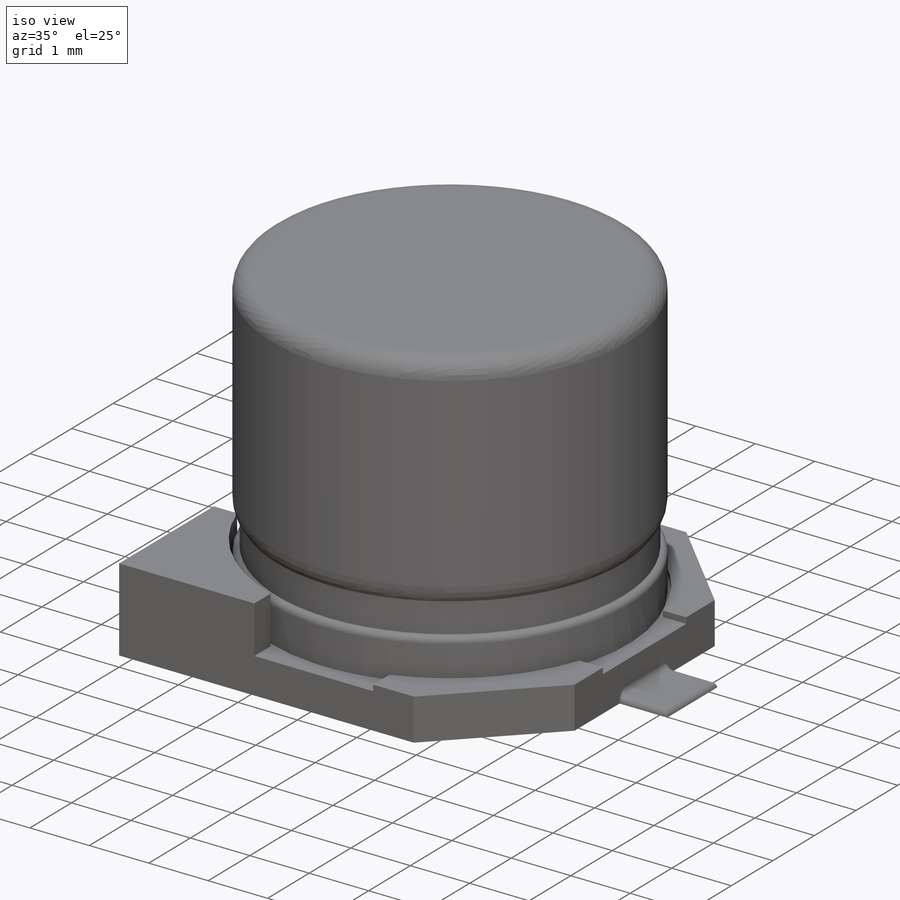
[diagram: iso view]
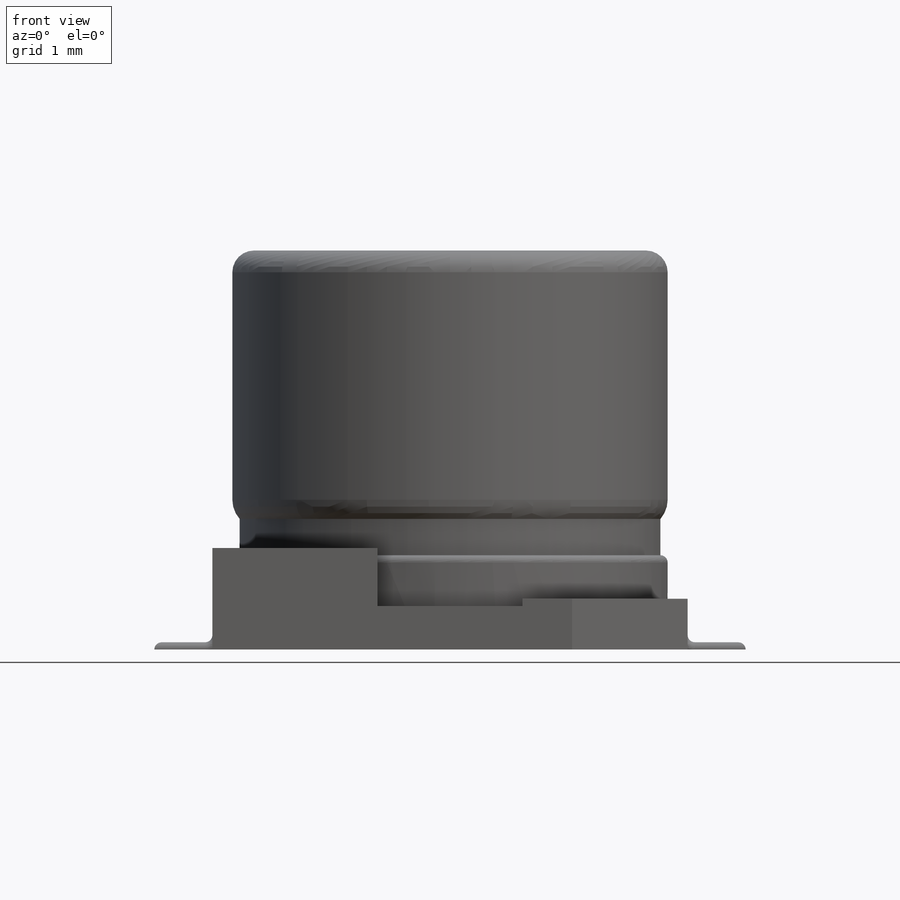
[diagram: front view]
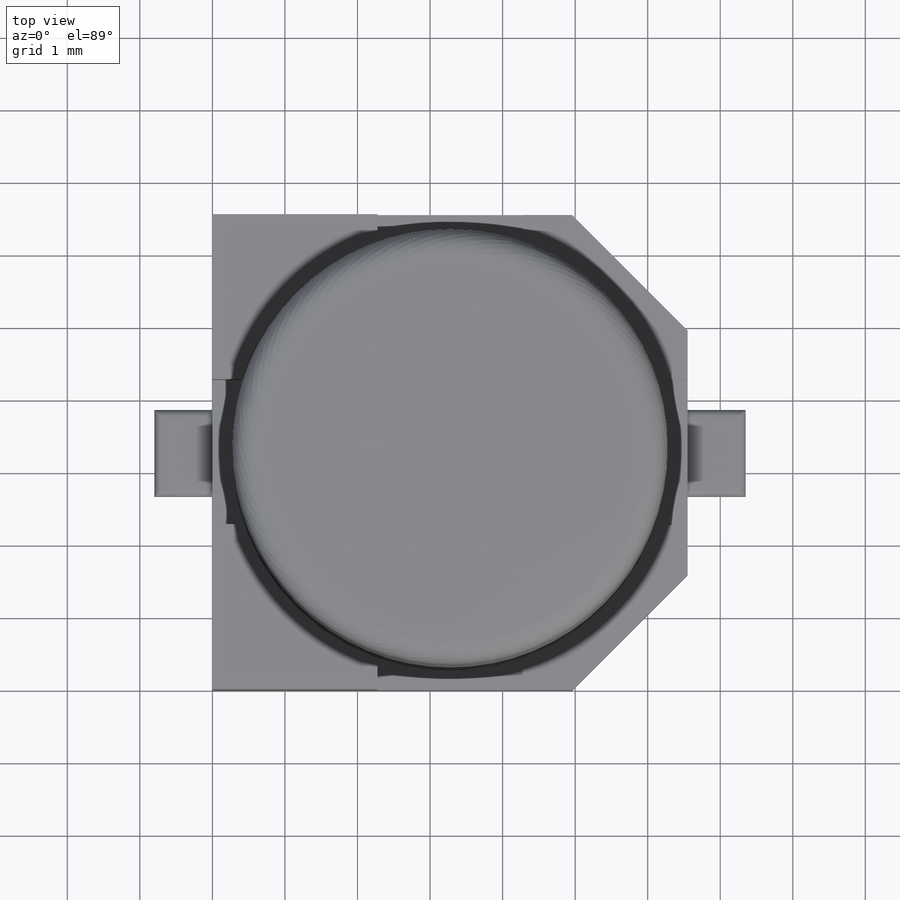
[diagram: top view]
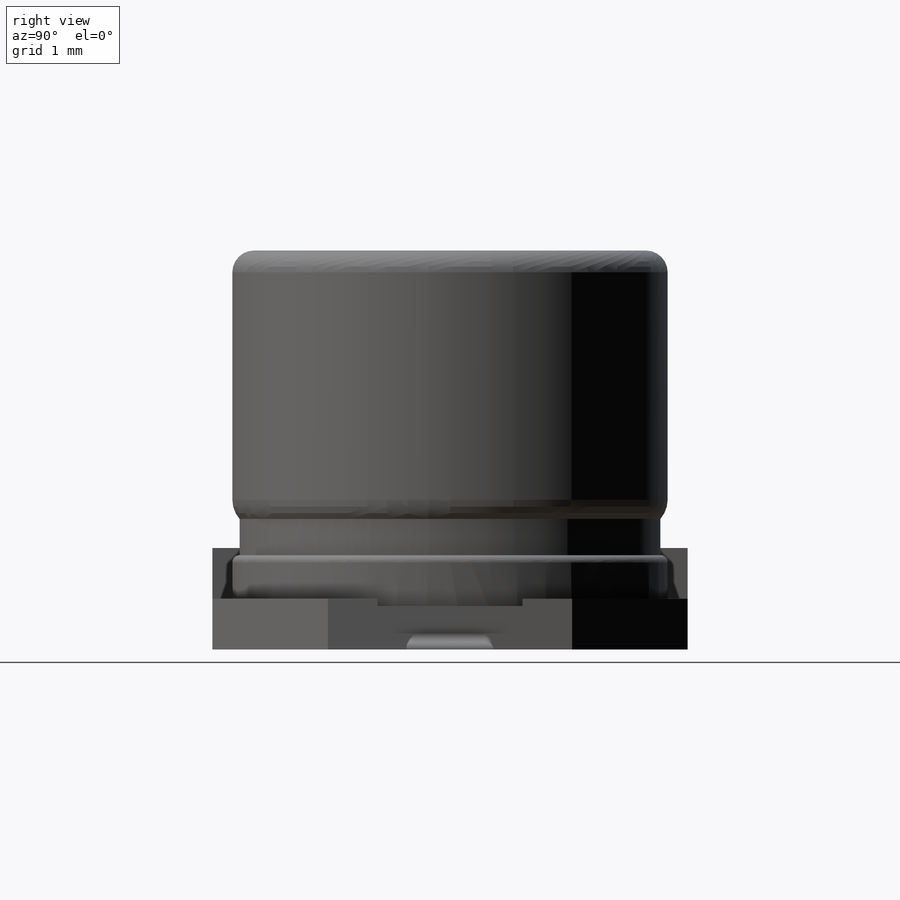
[diagram: right view]
SOLIDWORKS PART (.sldprt)
format: sldprt  version: not decoded by parser v0  size: 437,760 bytes
history: native  units: mm
features: sketch x8, extrude x7, fillet x7, plane x3, material x1, cut_extrude x1 (+10 scaffold rows collapsed)
feature tree (37):
  scaffold x10  (default folders/planes/origin — collapsed)
  material  "Material <not specified>"
  plane  "Plan de face"
  plane  "Plan de dessus"
  plane  "Plan de droite"
  sketch  "Esquisse1"  dims[c1.D1=6.55mm c1.D2=6.55mm c1.D3=6.55mm c2.D3=45.0deg c2.D4=~2.006415mm c3.D4=45.0deg c3.D2=2.25mm c3.D5=6.55mm]
  extrude  "Boss.-Extru.1"  Depth=0.7mm
  sketch  "Esquisse2"  dims[D1=6.1mm D2=2.0mm D3=2.0mm D4=2.0mm D5=2.0mm]
  cut_extrude  "Enlèv. mat.-Extru.1"  Depth=0.1mm
  sketch  "Esquisse3"
  extrude  "Boss.-Extru.2"  Depth=0.7mm
  sketch  "Esquisse4"  dims[D1=6.0mm]
  extrude  "Boss.-Extru.3"  Depth=0.7mm
  fillet  "Congé1"  Radius=0.1mm
  sketch  "Esquisse5"  dims[D1=0.0mm]
  extrude  "Boss.-Extru.4"  Depth=0.5mm
  sketch  "Esquisse6"
  extrude  "Boss.-Extru.5"  Depth=3.7mm
  fillet  "Congé2"  Radius=0.4mm
  fillet  "Congé3"  Radius=0.3mm
  sketch  "Esquisse7"  dims[D1=1.2mm D2=0.1mm]
  extrude  "Boss.-Extru.6"  Depth=0.8mm
  fillet  "Congé4"  Radius=0.1mm
  fillet  "Congé5"  Radius=0.1mm
  sketch  "Esquisse8"  dims[D1=1.2mm D2=0.1mm]
  extrude  "Boss.-Extru.7"  Depth=0.8mm
  fillet  "Congé6"  Radius=0.1mm
  fillet  "Congé7"  Radius=0.1mm
decode coverage: 21 of 23 modeling features carry decoded parameters
note: ~ marks probable driven/reference dimensions
note: suppression state not decoded; provenance and decode notes live in map.json
